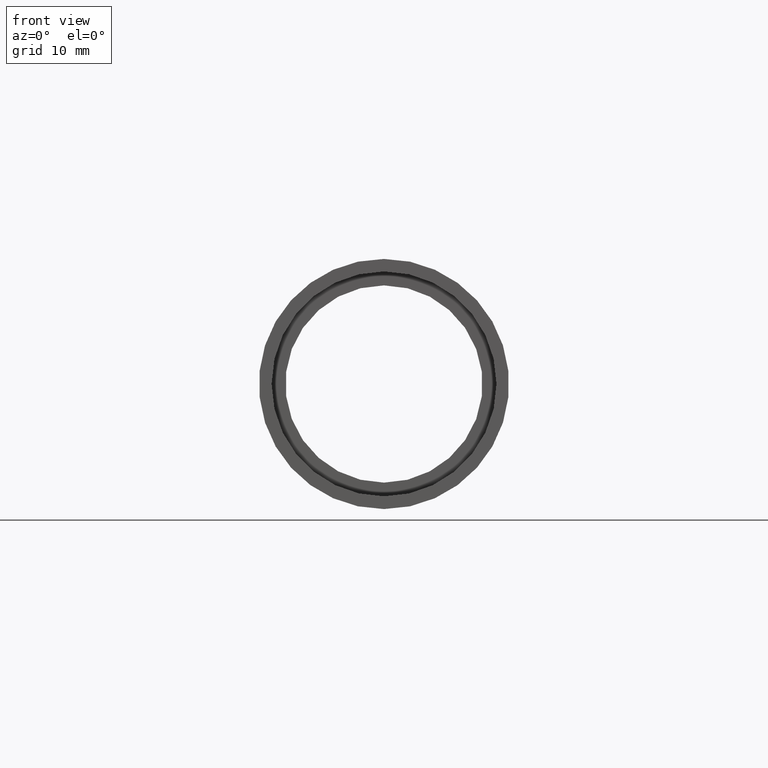
[diagram: clean part render]
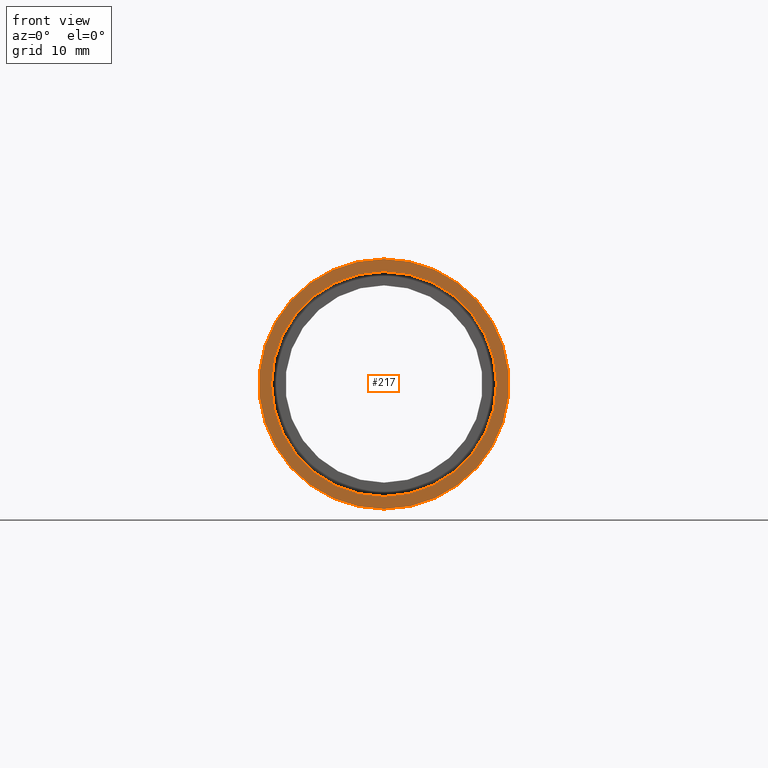
[diagram: same view with one face highlighted and labeled with its STEP entity id]
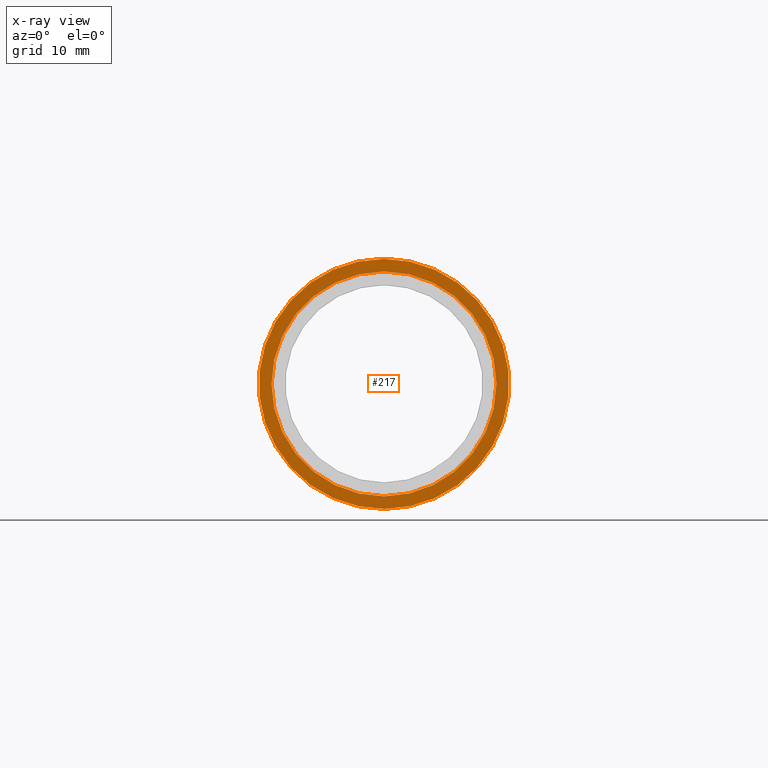
[diagram: x-ray of the same camera — body ghosted, the highlighted face saturated]
A machine part, front view. The second image highlights one B-rep face of the part: STEP entity #217.
The next image is the same camera in x-ray: the body ghosted, the highlighted face saturated — about 0% of this face is hidden behind the body in this view.
In plain terms, the highlighted planar face has unit normal (-0, 1, 0).
Its self-contained STEP definition (entity closure, byte-faithful):
#22 = DIRECTION ( 'NONE',  ( 0.0000000000000000000, 0.0000000000000000000, 1.000000000000000000 ) ) ;
#43 = DIRECTION ( 'NONE',  ( -0.0000000000000000000, 1.000000000000000000, -0.0000000000000000000 ) ) ;
#54 = AXIS2_PLACEMENT_3D ( 'NONE', #555, #43, #618 ) ;
#68 = CARTESIAN_POINT ( 'NONE',  ( 0.0000000000000000000, 2.775557561562891400E-014, 14.25000000000000000 ) ) ;
#83 = DIRECTION ( 'NONE',  ( 0.0000000000000000000, 0.0000000000000000000, 1.000000000000000000 ) ) ;
#88 = CIRCLE ( 'NONE', #54, 15.85000000000002100 ) ;
#99 = AXIS2_PLACEMENT_3D ( 'NONE', #114, #442, #489 ) ;
#103 = FACE_BOUND ( 'NONE', #233, .T. ) ;
#105 = ORIENTED_EDGE ( 'NONE', *, *, #469, .F. ) ;
#114 = CARTESIAN_POINT ( 'NONE',  ( 0.0000000000000000000, 2.775557561562891400E-014, 0.0000000000000000000 ) ) ;
#123 = DIRECTION ( 'NONE',  ( -0.0000000000000000000, 1.000000000000000000, -0.0000000000000000000 ) ) ;
#136 = CIRCLE ( 'NONE', #609, 15.85000000000002100 ) ;
#149 = EDGE_LOOP ( 'NONE', ( #105, #470 ) ) ;
#173 = VERTEX_POINT ( 'NONE', #358 ) ;
#192 = ORIENTED_EDGE ( 'NONE', *, *, #534, .T. ) ;
#203 = CARTESIAN_POINT ( 'NONE',  ( 0.0000000000000000000, -2.775557561562891400E-014, 0.0000000000000000000 ) ) ;
#209 = VERTEX_POINT ( 'NONE', #68 ) ;
#210 = CARTESIAN_POINT ( 'NONE',  ( 14.25000000000000000, 8.726008142763375300E-015, 0.0000000000000000000 ) ) ;
#217 = ADVANCED_FACE ( 'NONE', ( #547, #103 ), #542, .F. ) ;
#233 = EDGE_LOOP ( 'NONE', ( #377, #192 ) ) ;
#234 = EDGE_CURVE ( 'NONE', #209, #447, #610, .T. ) ;
#239 = CARTESIAN_POINT ( 'NONE',  ( 1.941065176648557100E-015, -2.775557561562891400E-014, -15.85000000000002100 ) ) ;
#300 = VERTEX_POINT ( 'NONE', #239 ) ;
#356 = CIRCLE ( 'NONE', #532, 14.25000000000000000 ) ;
#358 = CARTESIAN_POINT ( 'NONE',  ( 0.0000000000000000000, -2.775557561562891400E-014, 15.85000000000002100 ) ) ;
#364 = EDGE_CURVE ( 'NONE', #300, #173, #136, .T. ) ;
#377 = ORIENTED_EDGE ( 'NONE', *, *, #234, .T. ) ;
#394 = DIRECTION ( 'NONE',  ( -0.0000000000000000000, 1.000000000000000000, 0.0000000000000000000 ) ) ;
#409 = AXIS2_PLACEMENT_3D ( 'NONE', #210, #394, #487 ) ;
#442 = DIRECTION ( 'NONE',  ( -0.0000000000000000000, 1.000000000000000000, -0.0000000000000000000 ) ) ;
#447 = VERTEX_POINT ( 'NONE', #606 ) ;
#469 = EDGE_CURVE ( 'NONE', #173, #300, #88, .T. ) ;
#470 = ORIENTED_EDGE ( 'NONE', *, *, #364, .F. ) ;
#474 = DIRECTION ( 'NONE',  ( -0.0000000000000000000, 1.000000000000000000, -0.0000000000000000000 ) ) ;
#487 = DIRECTION ( 'NONE',  ( 0.0000000000000000000, 0.0000000000000000000, 1.000000000000000000 ) ) ;
#489 = DIRECTION ( 'NONE',  ( 0.0000000000000000000, 0.0000000000000000000, 1.000000000000000000 ) ) ;
#532 = AXIS2_PLACEMENT_3D ( 'NONE', #611, #474, #83 ) ;
#534 = EDGE_CURVE ( 'NONE', #447, #209, #356, .T. ) ;
#542 = PLANE ( 'NONE',  #409 ) ;
#547 = FACE_OUTER_BOUND ( 'NONE', #149, .T. ) ;
#555 = CARTESIAN_POINT ( 'NONE',  ( 0.0000000000000000000, -2.775557561562891400E-014, 0.0000000000000000000 ) ) ;
#606 = CARTESIAN_POINT ( 'NONE',  ( 1.745121688784978200E-015, 2.775557561562891400E-014, -14.25000000000000000 ) ) ;
#609 = AXIS2_PLACEMENT_3D ( 'NONE', #203, #123, #22 ) ;
#610 = CIRCLE ( 'NONE', #99, 14.25000000000000000 ) ;
#611 = CARTESIAN_POINT ( 'NONE',  ( 0.0000000000000000000, 2.775557561562891400E-014, 0.0000000000000000000 ) ) ;
#618 = DIRECTION ( 'NONE',  ( 0.0000000000000000000, 0.0000000000000000000, 1.000000000000000000 ) ) ;